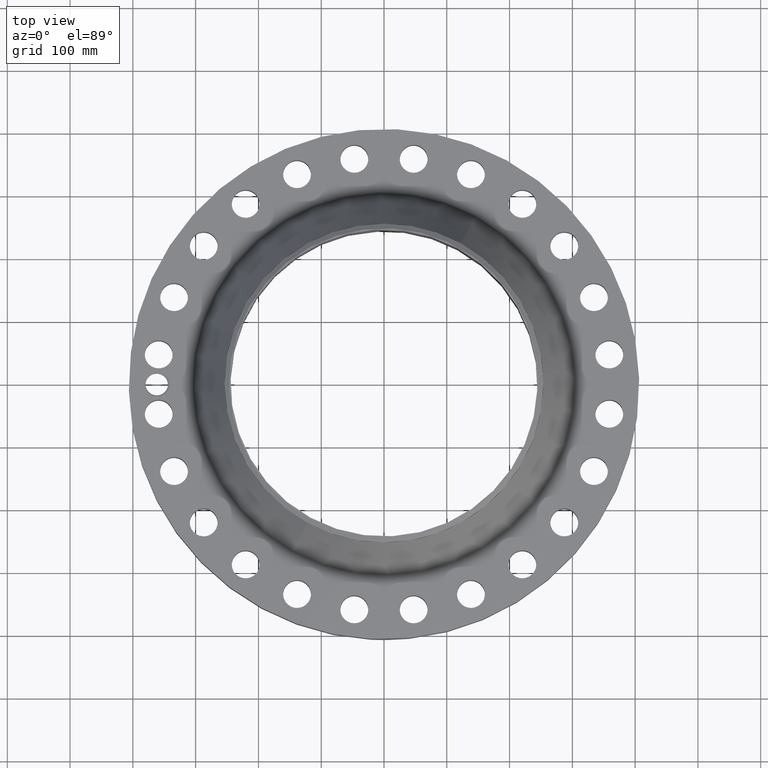
[diagram: clean part render]
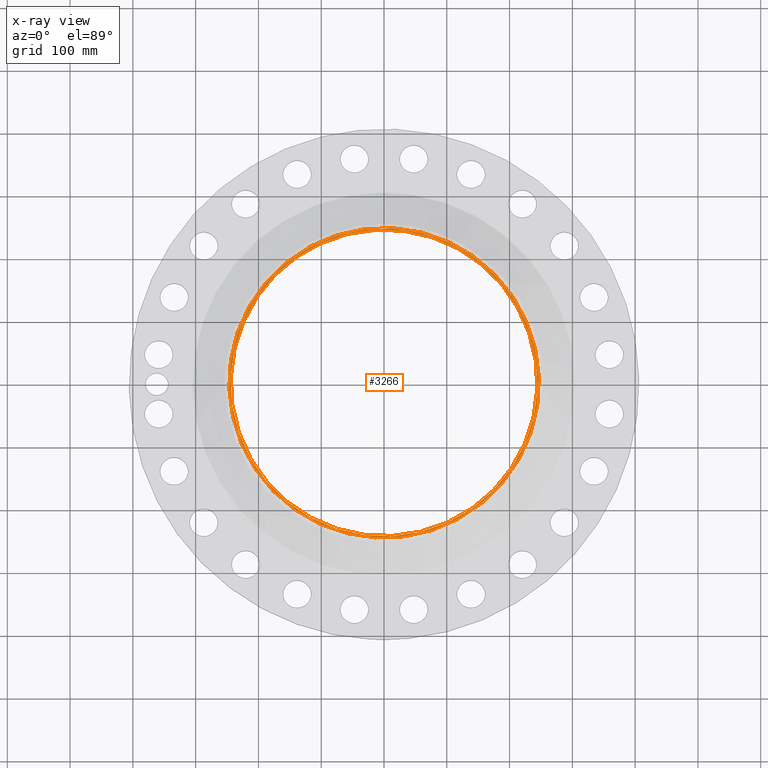
[diagram: x-ray — body ghosted, one internal face saturated and labeled with its STEP entity id]
A machine part, top view, then the same camera in x-ray: the body is ghosted and one INTERNAL B-rep face — a face not visible from any outside direction — is saturated and labeled: STEP entity #3266.
In plain terms, the highlighted planar face has unit normal (0, 0, -1).
Its self-contained STEP definition (entity closure, byte-faithful):
#1730=AXIS2_PLACEMENT_3D('Circle Axis2P3D',#1728,#1729,$) ;
#1798=AXIS2_PLACEMENT_3D('Circle Axis2P3D',#1796,#1797,$) ;
#3242=AXIS2_PLACEMENT_3D('Plane Axis2P3D',#3239,#3240,#3241) ;
#3246=AXIS2_PLACEMENT_3D('Circle Axis2P3D',#3244,#3245,$) ;
#3255=AXIS2_PLACEMENT_3D('Circle Axis2P3D',#3253,#3254,$) ;
#1728=CARTESIAN_POINT('Axis2P3D Location',(0.,0.,7.75000000003)) ;
#1732=CARTESIAN_POINT('Vertex',(4.61447080908,8.44673215823,7.75000000003)) ;
#1734=CARTESIAN_POINT('Vertex',(-4.61447080908,-8.44673215823,7.75000000003)) ;
#1796=CARTESIAN_POINT('Axis2P3D Location',(0.,0.,7.75000000003)) ;
#3239=CARTESIAN_POINT('Axis2P3D Location',(0.,10.,7.75000000003)) ;
#3244=CARTESIAN_POINT('Axis2P3D Location',(0.,0.,7.75000000003)) ;
#3248=CARTESIAN_POINT('Vertex',(4.65222085149,-8.51583314735,7.75000000003)) ;
#3250=CARTESIAN_POINT('Vertex',(-4.65222085149,8.51583314735,7.75000000003)) ;
#3253=CARTESIAN_POINT('Axis2P3D Location',(0.,0.,7.75000000003)) ;
#1729=DIRECTION('Axis2P3D Direction',(0.,0.,-0.0393700787402)) ;
#1797=DIRECTION('Axis2P3D Direction',(0.,0.,-0.0393700787402)) ;
#3240=DIRECTION('Axis2P3D Direction',(0.,0.,-0.0393700787402)) ;
#3241=DIRECTION('Axis2P3D XDirection',(0.0393700787402,0.,0.)) ;
#3245=DIRECTION('Axis2P3D Direction',(0.,0.,-0.0393700787402)) ;
#3254=DIRECTION('Axis2P3D Direction',(0.,0.,-0.0393700787402)) ;
#3259=ORIENTED_EDGE('',*,*,#3252,.T.) ;
#3260=ORIENTED_EDGE('',*,*,#3257,.T.) ;
#3263=ORIENTED_EDGE('',*,*,#1800,.T.) ;
#3264=ORIENTED_EDGE('',*,*,#1736,.T.) ;
#3265=FACE_BOUND('',#3262,.T.) ;
#3266=ADVANCED_FACE('PartBody',(#3261,#3265),#3243,.F.) ;
#1731=CIRCLE('generated circle',#1730,9.62500000004) ;
#1799=CIRCLE('generated circle',#1798,9.62500000004) ;
#3247=CIRCLE('generated circle',#3246,9.70374015752) ;
#3256=CIRCLE('generated circle',#3255,9.70374015752) ;
#1736=EDGE_CURVE('',#1733,#1735,#1731,.T.) ;
#1800=EDGE_CURVE('',#1735,#1733,#1799,.T.) ;
#3252=EDGE_CURVE('',#3249,#3251,#3247,.F.) ;
#3257=EDGE_CURVE('',#3251,#3249,#3256,.F.) ;
#3258=EDGE_LOOP('',(#3259,#3260)) ;
#3262=EDGE_LOOP('',(#3263,#3264)) ;
#3261=FACE_OUTER_BOUND('',#3258,.T.) ;
#3243=PLANE('',#3242) ;
#1733=VERTEX_POINT('',#1732) ;
#1735=VERTEX_POINT('',#1734) ;
#3249=VERTEX_POINT('',#3248) ;
#3251=VERTEX_POINT('',#3250) ;